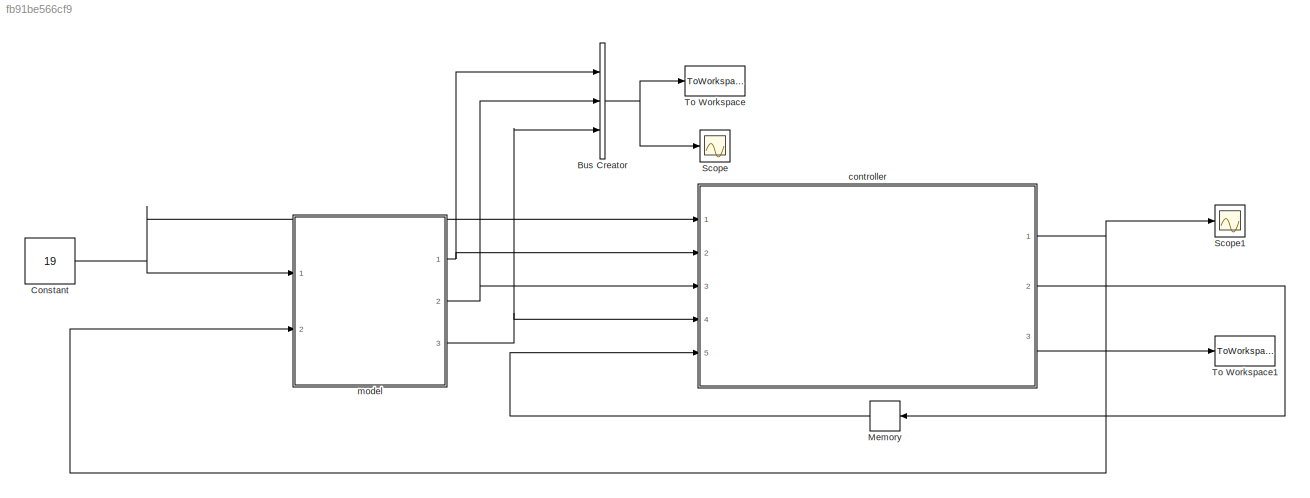
MODEL slx_fb91be566cf9
KIND model
BLOCK [BusCreator] Bus Creator
  DisplayOption = bar
  Inputs = 3
  Ports = [3, 1]
BLOCK [Constant] Constant
  Value = 19
BLOCK [Memory] Memory
BLOCK [Scope] Scope
  DataFormat = StructureWithTime
  Floating = off
  NumInputPorts = 1
  Ports = [1]
  SampleTime = 0
  ShowLegends = off
  YMax = 250
  YMin = -150
BLOCK [Scope] Scope1
  DataFormat = StructureWithTime
  Floating = off
  NumInputPorts = 1
  Ports = [1]
  SampleTime = 0
  SaveName = ScopeData1
  ShowLegends = off
  YMax = 1250
  YMin = -1250
BLOCK [ToWorkspace] To Workspace
  MaxDataPoints = inf
  Ports = [1]
  SampleTime = -1
  SaveFormat = Timeseries
  VariableName = simout
BLOCK [ToWorkspace] To Workspace1
  MaxDataPoints = inf
  Ports = [1]
  SampleTime = -1
  SaveFormat = Timeseries
  VariableName = simout1
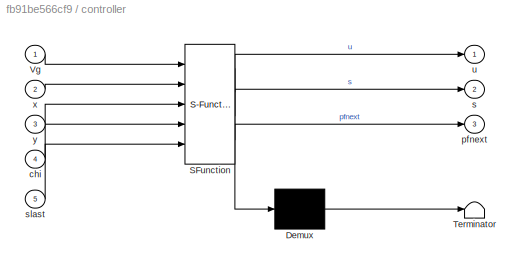
BLOCK [SubSystem] controller
  ErrorFcn = Stateflow.Translate.translate
  PermitHierarchicalResolution = ExplicitOnly
  Ports = [5, 3]
  RequestExecContextInheritance = off
  SFBlockType = MATLAB Function
  TreatAsAtomicUnit = on
BLOCK [Demux] controller/ Demux 
  Outputs = 1
  Ports = [1, 1]
BLOCK [S-Function] controller/ SFunction 
  EnableBusSupport = off
  FunctionName = sf_sfun
  PortCounts = [5 4]
  Ports = [5, 4]
  Tag = Stateflow S-Function routeTracking 2
BLOCK [Terminator] controller/ Terminator 
BLOCK [Inport] controller/Vg
  IconDisplay = Port number
BLOCK [Inport] controller/chi
  IconDisplay = Port number
  Port = 4
BLOCK [Outport] controller/pfnext
  IconDisplay = Port number
  Port = 3
BLOCK [Outport] controller/s
  IconDisplay = Port number
  Port = 2
BLOCK [Inport] controller/slast
  IconDisplay = Port number
  Port = 5
BLOCK [Outport] controller/u
  IconDisplay = Port number
BLOCK [Inport] controller/x
  IconDisplay = Port number
  Port = 2
BLOCK [Inport] controller/y
  IconDisplay = Port number
  Port = 3
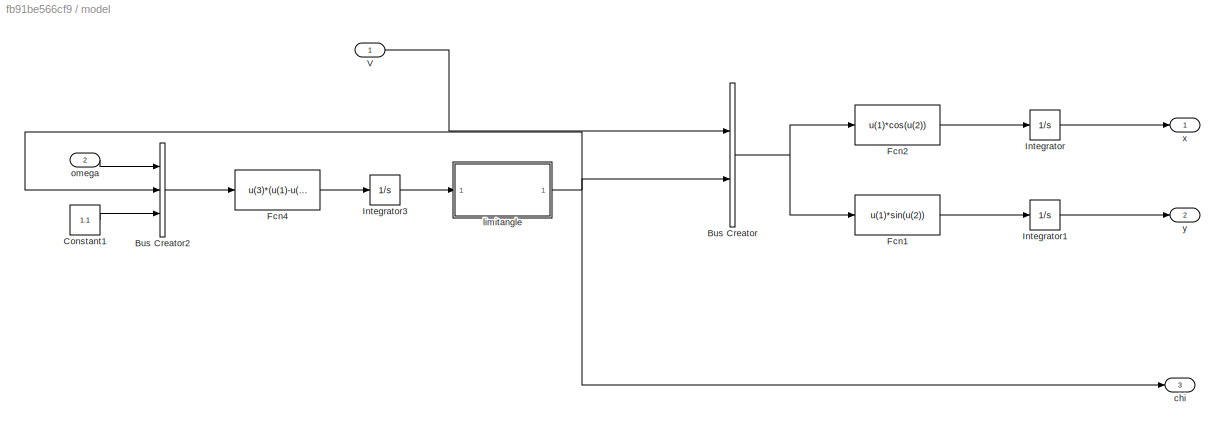
BLOCK [SubSystem] model
  Ports = [2, 3]
  RequestExecContextInheritance = off
BLOCK [BusCreator] model/Bus Creator
  DisplayOption = bar
  Inputs = 2
  Ports = [2, 1]
BLOCK [BusCreator] model/Bus Creator2
  DisplayOption = bar
  Inputs = 3
  Ports = [3, 1]
BLOCK [Constant] model/Constant1
  Value = 1.1
BLOCK [Fcn] model/Fcn1
  Expr = u(1)*sin(u(2))
BLOCK [Fcn] model/Fcn2
  Expr = u(1)*cos(u(2))
BLOCK [Fcn] model/Fcn4
  Expr = u(3)*(u(1)-u(2))
BLOCK [Integrator] model/Integrator
  Ports = [1, 1]
BLOCK [Integrator] model/Integrator1
  InitialCondition = 10
  Ports = [1, 1]
BLOCK [Integrator] model/Integrator3
  Ports = [1, 1]
BLOCK [Inport] model/V
  IconDisplay = Port number
BLOCK [Outport] model/chi
  IconDisplay = Port number
  Port = 3
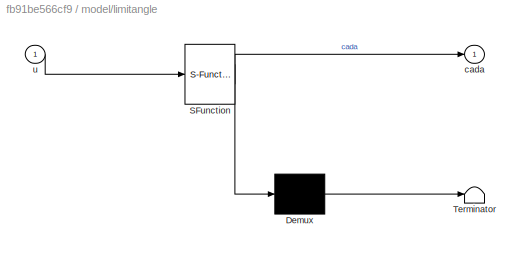
BLOCK [SubSystem] model/limitangle
  ErrorFcn = Stateflow.Translate.translate
  PermitHierarchicalResolution = ExplicitOnly
  Ports = [1, 1]
  RequestExecContextInheritance = off
  SFBlockType = MATLAB Function
  TreatAsAtomicUnit = on
BLOCK [Demux] model/limitangle/ Demux 
  Outputs = 1
  Ports = [1, 1]
BLOCK [S-Function] model/limitangle/ SFunction 
  EnableBusSupport = off
  FunctionName = sf_sfun
  PortCounts = [1 2]
  Ports = [1, 2]
  Tag = Stateflow S-Function routeTracking 3
BLOCK [Terminator] model/limitangle/ Terminator 
BLOCK [Outport] model/limitangle/cada
  IconDisplay = Port number
BLOCK [Inport] model/limitangle/u
  IconDisplay = Port number
BLOCK [Inport] model/omega
  IconDisplay = Port number
  Port = 2
BLOCK [Outport] model/x
  IconDisplay = Port number
BLOCK [Outport] model/y
  IconDisplay = Port number
  Port = 2
NET Bus Creator:1 -> Scope:1, To Workspace:1
NET Constant:1 -> controller:1, model:1
LINE Memory:1 -> controller:5
NET controller:1 -> Scope1:1, model:2
LINE controller:2 -> Memory:1
LINE controller:3 -> To Workspace1:1
LINE model/Bus Creator2:1 -> model/Fcn4:1
NET model/Bus Creator:1 -> model/Fcn1:1, model/Fcn2:1
LINE model/Constant1:1 -> model/Bus Creator2:3
LINE model/Fcn1:1 -> model/Integrator1:1
LINE model/Fcn2:1 -> model/Integrator:1
LINE model/Fcn4:1 -> model/Integrator3:1
LINE model/Integrator1:1 -> model/y:1
LINE model/Integrator3:1 -> model/limitangle:1
LINE model/Integrator:1 -> model/x:1
LINE model/V:1 -> model/Bus Creator:1
NET model/limitangle:1 -> model/Bus Creator2:2, model/Bus Creator:2, model/chi:1
LINE model/omega:1 -> model/Bus Creator2:1
NET model:1 -> Bus Creator:1, controller:2
NET model:2 -> Bus Creator:2, controller:3
NET model:3 -> Bus Creator:3, controller:4
note: NET lines group one-source signal fan-out (src -> all destinations, sorted); 1:1 wires keep LINE
CHART controller states=1 transitions=1
  STATE_LABEL 'eML_blk_kernel()'
  STATE_LABEL "SCRIPT:\nfunction [u,s,pfnext]= fcn(Vg,x,y,chi,slast)\n% %% parameters setting\n\n%#eml\n%% setting ,\np=[x,y];\nL=30;\n%% control law\n[pfnext,chif,s,ydis]=getnearestposition(L,p,slast);\n\n%k=0.2;\nkappa=10;\nepsilon=1;\n\n% tchi=chi-chif;\n% if tchi>pi\n%     tchi=tchi-2*pi;\n% elseif tchi<-pi\n%     tchi=tchi+2*pi;\n% end\n%     \nerror=[cos(chif) -sin(chif);sin(chif) cos(chif)]'*(p'-pfnext');\nes=error(1);\ned=error...<+1466ch>"
CHART model/limitangle states=1 transitions=1
  STATE_LABEL 'eML_blk_kernel()'
  STATE_LABEL 'SCRIPT:\nfunction cada  = limitminpi2pi(u)\n%#codegen\n\nwhile u>pi\n   u = u-2*pi;\nend\n\nwhile u<-pi\n   u = u+2*pi;\nend\n\n    cada=u;\n'
